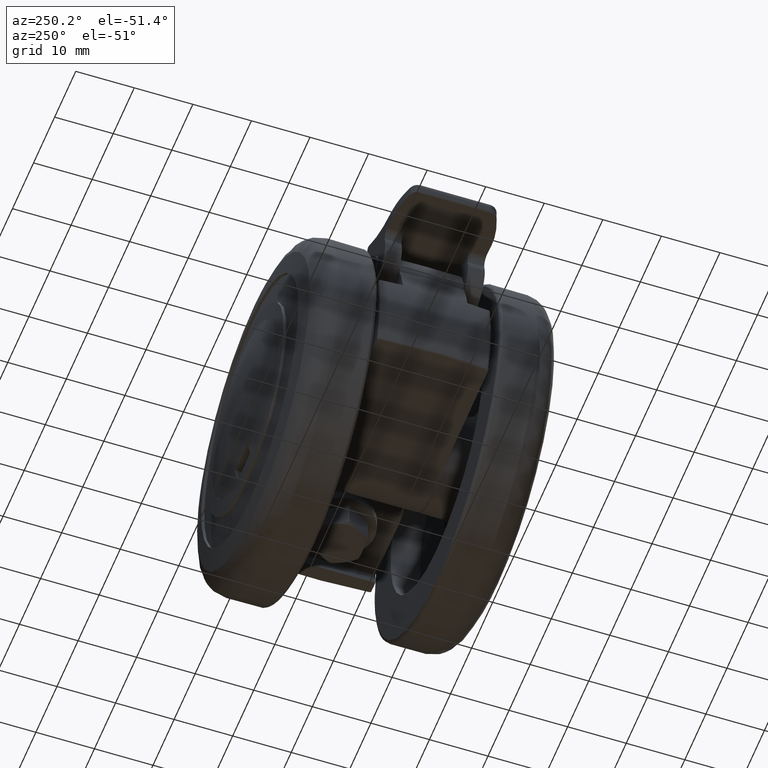
[diagram: clean part render]
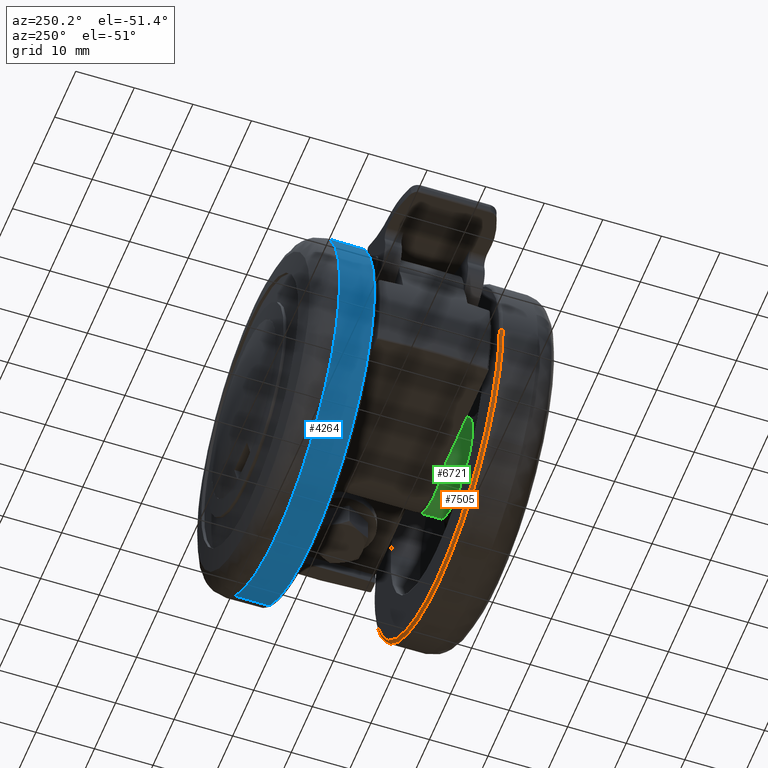
[diagram: same view with three faces highlighted in distinct colors, each labeled with its STEP entity id]
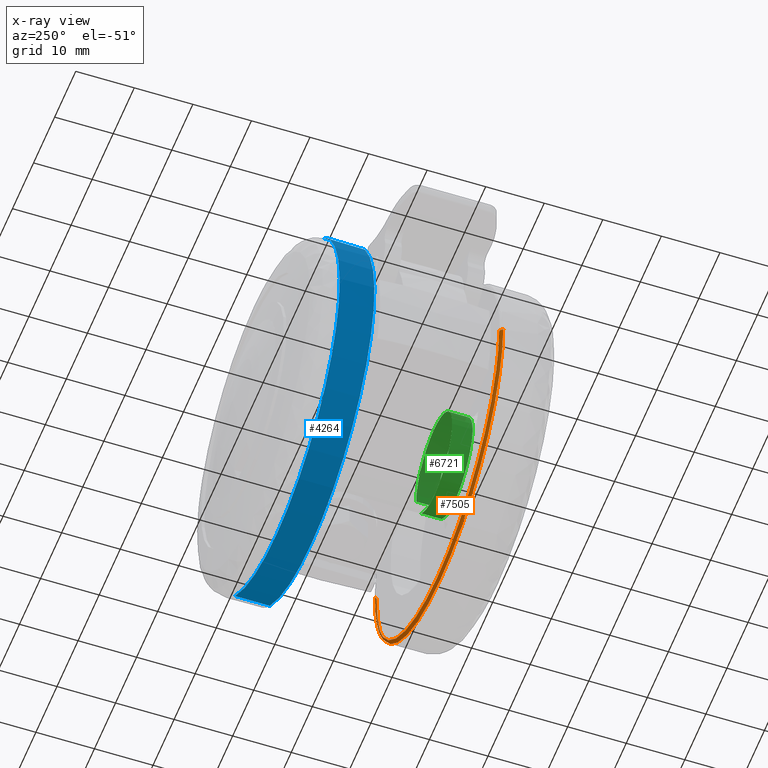
[diagram: x-ray of the same camera — body ghosted, the three highlighted faces saturated]
A machine part, auxiliary view with three faces highlighted in distinct colors.
The next image is the same camera in x-ray (body ghosted, the three faces saturated) — at least one of them is partly hidden behind the body in this view.
Their STEP definitions:

[orange] entity #7505 — the highlighted face is a freeform B-spline surface patch.
#6368=CARTESIAN_POINT('',(-29.990525678497470,-10.999999999923910,-0.753902863360767));
#6369=VERTEX_POINT('',#6368);
#6385=CARTESIAN_POINT('',(-22.686024877766950,-10.999999999973021,-19.630187855568810));
#6386=VERTEX_POINT('',#6385);
#6387=CARTESIAN_POINT('',(-22.686024877766954,-10.999999999973021,-19.630187855568817));
#6388=CARTESIAN_POINT('',(-29.720369695311238,-10.999999999951870,-11.500804545328336));
#6389=CARTESIAN_POINT('',(-29.990525678497473,-10.999999999923910,-0.753902863360767));
#6397=(BOUNDED_CURVE()B_SPLINE_CURVE(2,(#6387,#6388,#6389),.UNSPECIFIED.,.F.,.U.)B_SPLINE_CURVE_WITH_KNOTS((3,3),(0.635882132299198,0.745579891769099),.UNSPECIFIED.)CURVE()GEOMETRIC_REPRESENTATION_ITEM()RATIONAL_B_SPLINE_CURVE((0.854663299402094,0.865851778479166,0.989826157679974))REPRESENTATION_ITEM(''));
#6398=EDGE_CURVE('',#6386,#6369,#6397,.T.);
#6446=CARTESIAN_POINT('',(0.0,-11.0,-30.0));
#6447=VERTEX_POINT('',#6446);
#6448=CARTESIAN_POINT('',(0.0,-11.0,-30.0));
#6449=CARTESIAN_POINT('',(-13.713039900497545,-11.0,-30.0));
#6450=CARTESIAN_POINT('',(-22.686024877766954,-10.999999999973021,-19.630187855568817));
#6458=(BOUNDED_CURVE()B_SPLINE_CURVE(2,(#6448,#6449,#6450),.UNSPECIFIED.,.F.,.U.)B_SPLINE_CURVE_WITH_KNOTS((3,3),(0.500000000000000,0.635882132299198),.UNSPECIFIED.)CURVE()GEOMETRIC_REPRESENTATION_ITEM()RATIONAL_B_SPLINE_CURVE((1.0,0.840804179566610,0.854663299402094))REPRESENTATION_ITEM(''));
#6459=EDGE_CURVE('',#6447,#6386,#6458,.T.);
#6461=CARTESIAN_POINT('',(29.990525678497470,-10.999999999923910,0.753902863360767));
#6462=VERTEX_POINT('',#6461);
#6463=CARTESIAN_POINT('',(29.990525678497473,-10.999999999923912,0.753902863360767));
#6464=CARTESIAN_POINT('',(30.0,-11.000000000000007,0.377010963762058));
#6465=CARTESIAN_POINT('',(30.0,-11.0,0.0));
#6466=CARTESIAN_POINT('',(29.999999999999993,-11.0,-29.999999999999993));
#6467=CARTESIAN_POINT('',(0.0,-11.0,-30.0));
#6475=(BOUNDED_CURVE()B_SPLINE_CURVE(2,(#6463,#6464,#6465,#6466,#6467),.UNSPECIFIED.,.F.,.U.)B_SPLINE_CURVE_WITH_KNOTS((3,2,3),(0.245579891769100,0.250000000000000,0.500000000000000),.UNSPECIFIED.)CURVE()GEOMETRIC_REPRESENTATION_ITEM()RATIONAL_B_SPLINE_CURVE((0.989826157679977,0.994821521090991,1.0,0.707106781186547,1.0))REPRESENTATION_ITEM(''));
#6476=EDGE_CURVE('',#6462,#6447,#6475,.T.);
#7417=CARTESIAN_POINT('',(29.989309214057212,-11.034862128661313,0.753872283775259));
#7418=CARTESIAN_POINT('',(30.743181497832477,-11.034862128661310,-29.235436930281956));
#7419=CARTESIAN_POINT('',(0.753872283775267,-11.034862128661313,-29.989309214057212));
#7420=CARTESIAN_POINT('',(-29.235436930281956,-11.034862128661310,-30.743181497832477));
#7421=CARTESIAN_POINT('',(-29.989309214057212,-11.034862128661313,-0.753872283775269));
#7422=CARTESIAN_POINT('',(30.029383125830293,-10.461331273120734,0.754879663144105));
#7423=CARTESIAN_POINT('',(30.784262788974409,-10.461331273120734,-29.274503462686180));
#7424=CARTESIAN_POINT('',(0.754879663144113,-10.461331273120734,-30.029383125830293));
#7425=CARTESIAN_POINT('',(-29.274503462686180,-10.461331273120734,-30.784262788974409));
#7426=CARTESIAN_POINT('',(-30.029383125830293,-10.461331273120734,-0.754879663144115));
#7427=CARTESIAN_POINT('',(29.456018487206592,-10.501203877606647,0.740466403189700));
#7428=CARTESIAN_POINT('',(30.196484890396299,-10.501203877606649,-28.715552084016874));
#7429=CARTESIAN_POINT('',(0.740466403189708,-10.501203877606647,-29.456018487206592));
#7430=CARTESIAN_POINT('',(-28.715552084016874,-10.501203877606649,-30.196484890396299));
#7431=CARTESIAN_POINT('',(-29.456018487206592,-10.501203877606647,-0.740466403189710));
#7439=(BOUNDED_SURFACE()B_SPLINE_SURFACE(2,2,((#7417,#7422,#7427),(#7418,#7423,#7428),(#7419,#7424,#7429),(#7420,#7425,#7430),(#7421,#7426,#7431)),.UNSPECIFIED.,.F.,.F.,.U.)B_SPLINE_SURFACE_WITH_KNOTS((3,2,3),(3,3),(0.0,49.703611343772742,99.407222687545485),(0.0,0.911186126923229),.UNSPECIFIED.)GEOMETRIC_REPRESENTATION_ITEM()RATIONAL_B_SPLINE_SURFACE(((0.910892971418953,0.599412603206690,0.915967262884417),(0.644098597025506,0.423848716456132,0.647686662930452),(0.910892971418953,0.599412603206690,0.915967262884417),(0.644098597025506,0.423848716456132,0.647686662930452),(0.910892971418953,0.599412603206690,0.915967262884417)))REPRESENTATION_ITEM('')SURFACE());
#7440=ORIENTED_EDGE('',*,*,#6476,.T.);
#7441=ORIENTED_EDGE('',*,*,#6459,.T.);
#7442=ORIENTED_EDGE('',*,*,#6398,.T.);
#7443=CARTESIAN_POINT('',(-29.490683629105199,-10.500000000000000,-0.741337817106431));
#7444=VERTEX_POINT('',#7443);
#7445=CARTESIAN_POINT('',(-29.990525678497473,-10.999999999923912,-0.753902863360768));
#7446=CARTESIAN_POINT('',(-29.990525678346849,-10.500000090543908,-0.753902863296298));
#7447=CARTESIAN_POINT('',(-29.490683629105199,-10.500000000000002,-0.741337817106431));
#7455=(BOUNDED_CURVE()B_SPLINE_CURVE(2,(#7445,#7446,#7447),.UNSPECIFIED.,.F.,.U.)B_SPLINE_CURVE_WITH_KNOTS((3,3),(-1.723441281671403,-0.263587066347038),.UNSPECIFIED.)CURVE()GEOMETRIC_REPRESENTATION_ITEM()RATIONAL_B_SPLINE_CURVE((0.883897567028221,0.626638760321188,0.888510341823274))REPRESENTATION_ITEM(''));
#7456=EDGE_CURVE('',#6369,#7444,#7455,.T.);
#7457=ORIENTED_EDGE('',*,*,#7456,.T.);
#7458=CARTESIAN_POINT('',(0.0,-10.500000000000000,-29.500000000000000));
#7459=VERTEX_POINT('',#7458);
#7460=CARTESIAN_POINT('',(0.0,-10.500000000000000,-29.500000000000000));
#7461=CARTESIAN_POINT('',(-28.767747346567329,-10.500000000000000,-29.500000000000000));
#7462=CARTESIAN_POINT('',(-29.490683629105195,-10.499999999999998,-0.741337817106431));
#7470=(BOUNDED_CURVE()B_SPLINE_CURVE(2,(#7460,#7461,#7462),.UNSPECIFIED.,.F.,.U.)B_SPLINE_CURVE_WITH_KNOTS((3,3),(0.500000000000000,0.745579891765175),.UNSPECIFIED.)CURVE()GEOMETRIC_REPRESENTATION_ITEM()RATIONAL_B_SPLINE_CURVE((1.0,0.712285260100154,0.989826157671106))REPRESENTATION_ITEM(''));
#7471=EDGE_CURVE('',#7459,#7444,#7470,.T.);
#7472=ORIENTED_EDGE('',*,*,#7471,.F.);
#7473=CARTESIAN_POINT('',(29.490683629105199,-10.500000000000000,0.741337817106429));
#7474=VERTEX_POINT('',#7473);
#7475=CARTESIAN_POINT('',(29.490683629105195,-10.500000000000005,0.741337817106429));
#7476=CARTESIAN_POINT('',(29.499999999999996,-10.499999999999998,0.370727448030166));
#7477=CARTESIAN_POINT('',(29.500000000000000,-10.500000000000000,0.0));
#7478=CARTESIAN_POINT('',(29.499999999999996,-10.500000000000002,-29.499999999999996));
#7479=CARTESIAN_POINT('',(0.0,-10.500000000000000,-29.500000000000000));
#7487=(BOUNDED_CURVE()B_SPLINE_CURVE(2,(#7475,#7476,#7477,#7478,#7479),.UNSPECIFIED.,.F.,.U.)B_SPLINE_CURVE_WITH_KNOTS((3,2,3),(0.245579891765176,0.250000000000000,0.500000000000000),.UNSPECIFIED.)CURVE()GEOMETRIC_REPRESENTATION_ITEM()RATIONAL_B_SPLINE_CURVE((0.989826157671108,0.994821521086394,1.0,0.707106781186548,1.0))REPRESENTATION_ITEM(''));
#7488=EDGE_CURVE('',#7474,#7459,#7487,.T.);
#7489=ORIENTED_EDGE('',*,*,#7488,.F.);
#7490=CARTESIAN_POINT('',(29.990525678497470,-10.999999999923912,0.753902863360767));
#7491=CARTESIAN_POINT('',(29.990525678346863,-10.500000090543914,0.753902863296302));
#7492=CARTESIAN_POINT('',(29.490683629105206,-10.500000000000004,0.741337817106429));
#7500=(BOUNDED_CURVE()B_SPLINE_CURVE(2,(#7490,#7491,#7492),.UNSPECIFIED.,.F.,.U.)B_SPLINE_CURVE_WITH_KNOTS((3,3),(-1.723441281671407,-0.263587066347045),.UNSPECIFIED.)CURVE()GEOMETRIC_REPRESENTATION_ITEM()RATIONAL_B_SPLINE_CURVE((0.883897567028222,0.626638760321188,0.888510341823271))REPRESENTATION_ITEM(''));
#7501=EDGE_CURVE('',#6462,#7474,#7500,.T.);
#7502=ORIENTED_EDGE('',*,*,#7501,.F.);
#7503=EDGE_LOOP('',(#7440,#7441,#7442,#7457,#7472,#7489,#7502));
#7504=FACE_OUTER_BOUND('',#7503,.T.);
#7505=ADVANCED_FACE('',(#7504),#7439,.T.);

[blue] entity #4264 — the highlighted face is a freeform B-spline surface patch.
#4043=CARTESIAN_POINT('',(19.630187965152860,16.918165000004919,-22.686024782953091));
#4044=VERTEX_POINT('',#4043);
#4075=CARTESIAN_POINT('',(-22.118321371718419,16.918165000004819,20.267704845329199));
#4076=VERTEX_POINT('',#4075);
#4090=CARTESIAN_POINT('',(-22.118321259217169,10.999999999976550,20.267704968094289));
#4091=VERTEX_POINT('',#4090);
#4092=CARTESIAN_POINT('',(-22.118321371718419,16.918165000004819,20.267704845329199));
#4093=CARTESIAN_POINT('',(-22.118321259217169,10.999999999976550,20.267704968094289));
#4094=QUASI_UNIFORM_CURVE('',1,(#4092,#4093),.UNSPECIFIED.,.F.,.U.);
#4095=EDGE_CURVE('',#4076,#4091,#4094,.T.);
#4129=CARTESIAN_POINT('',(19.630187422599640,10.999999999982380,-22.686025252417171));
#4130=VERTEX_POINT('',#4129);
#4144=CARTESIAN_POINT('',(19.630187965152860,16.918165000004919,-22.686024782953091));
#4145=CARTESIAN_POINT('',(19.630187422599640,10.999999999982380,-22.686025252417171));
#4146=QUASI_UNIFORM_CURVE('',1,(#4144,#4145),.UNSPECIFIED.,.F.,.U.);
#4147=EDGE_CURVE('',#4044,#4130,#4146,.T.);
#4152=CARTESIAN_POINT('',(-22.118320104303731,17.066119125357350,20.267706228469780));
#4153=CARTESIAN_POINT('',(-42.386026332773511,17.066119125357357,-1.850613875833958));
#4154=CARTESIAN_POINT('',(-20.267706228469780,17.066119125357361,-22.118320104303731));
#4155=CARTESIAN_POINT('',(-0.571525739353565,17.066119125357357,-40.166544295554615));
#4156=CARTESIAN_POINT('',(19.630189710081165,17.066119125357368,-22.686023273068884));
#4157=CARTESIAN_POINT('',(-22.118320104303731,10.848347021793840,20.267706228469770));
#4158=CARTESIAN_POINT('',(-42.386026332773511,10.848347021793844,-1.850613875833961));
#4159=CARTESIAN_POINT('',(-20.267706228469780,10.848347021793851,-22.118320104303741));
#4160=CARTESIAN_POINT('',(-0.571525739353565,10.848347021793856,-40.166544295554615));
#4161=CARTESIAN_POINT('',(19.630189710081165,10.848347021793849,-22.686023273068884));
#4169=(BOUNDED_SURFACE()B_SPLINE_SURFACE(2,1,((#4152,#4157),(#4153,#4158),(#4154,#4159),(#4155,#4160),(#4156,#4161)),.UNSPECIFIED.,.F.,.F.,.U.)B_SPLINE_SURFACE_WITH_KNOTS((3,2,3),(2,2),(0.0,49.705627484771391,95.434804770761062),(0.0,6.217772103563516),.UNSPECIFIED.)GEOMETRIC_REPRESENTATION_ITEM()RATIONAL_B_SPLINE_SURFACE(((1.0,1.0),(0.707106781186548,0.707106781186548),(1.0,1.0),(0.730538238691624,0.730538238691624),(0.956886118190660,0.956886118190660)))REPRESENTATION_ITEM('')SURFACE());
#4170=CARTESIAN_POINT('',(0.0,16.918165000004851,-29.999999999999989));
#4171=VERTEX_POINT('',#4170);
#4172=CARTESIAN_POINT('',(19.630187965152864,16.918165000004919,-22.686024782953098));
#4173=CARTESIAN_POINT('',(11.177644192756237,16.918165000004844,-29.999999999999993));
#4174=CARTESIAN_POINT('',(0.0,16.918165000004851,-29.999999999999989));
#4182=(BOUNDED_CURVE()B_SPLINE_CURVE(2,(#4172,#4173,#4174),.UNSPECIFIED.,.F.,.U.)B_SPLINE_CURVE_WITH_KNOTS((3,3),(0.385882131569503,0.500000000000000),.UNSPECIFIED.)CURVE()GEOMETRIC_REPRESENTATION_ITEM()RATIONAL_B_SPLINE_CURVE((0.854663299253246,0.866302600765047,1.0))REPRESENTATION_ITEM(''));
#4183=EDGE_CURVE('',#4044,#4171,#4182,.T.);
#4184=ORIENTED_EDGE('',*,*,#4183,.F.);
#4185=ORIENTED_EDGE('',*,*,#4147,.T.);
#4186=CARTESIAN_POINT('',(0.0,11.0,-30.0));
#4187=VERTEX_POINT('',#4186);
#4188=CARTESIAN_POINT('',(19.630187422599640,10.999999999982377,-22.686025252417167));
#4189=CARTESIAN_POINT('',(11.177643784216981,11.0,-30.0));
#4190=CARTESIAN_POINT('',(0.0,11.0,-30.0));
#4198=(BOUNDED_CURVE()B_SPLINE_CURVE(2,(#4188,#4189,#4190),.UNSPECIFIED.,.F.,.U.)B_SPLINE_CURVE_WITH_KNOTS((3,3),(0.385882135182826,0.500000000000000),.UNSPECIFIED.)CURVE()GEOMETRIC_REPRESENTATION_ITEM()RATIONAL_B_SPLINE_CURVE((0.854663299990318,0.866302604998318,1.0))REPRESENTATION_ITEM(''));
#4199=EDGE_CURVE('',#4130,#4187,#4198,.T.);
#4200=ORIENTED_EDGE('',*,*,#4199,.T.);
#4201=CARTESIAN_POINT('',(-29.990525678497679,10.999999999929541,0.753902863352735));
#4202=VERTEX_POINT('',#4201);
#4203=CARTESIAN_POINT('',(0.0,11.0,-30.0));
#4204=CARTESIAN_POINT('',(-29.999999999999993,11.0,-29.999999999999993));
#4205=CARTESIAN_POINT('',(-30.0,11.0,4.041201E-015));
#4206=CARTESIAN_POINT('',(-30.0,11.000000000000005,0.377010963754011));
#4207=CARTESIAN_POINT('',(-29.990525678497679,10.999999999929535,0.753902863352735));
#4215=(BOUNDED_CURVE()B_SPLINE_CURVE(2,(#4203,#4204,#4205,#4206,#4207),.UNSPECIFIED.,.F.,.U.)B_SPLINE_CURVE_WITH_KNOTS((3,2,3),(0.500000000000000,0.750000000000000,0.754420108230806),.UNSPECIFIED.)CURVE()GEOMETRIC_REPRESENTATION_ITEM()RATIONAL_B_SPLINE_CURVE((1.0,0.707106781186547,1.0,0.994821521091101,0.989826157680189))REPRESENTATION_ITEM(''));
#4216=EDGE_CURVE('',#4187,#4202,#4215,.T.);
#4217=ORIENTED_EDGE('',*,*,#4216,.T.);
#4218=CARTESIAN_POINT('',(-29.990525678497676,10.999999999929537,0.753902863352735));
#4219=CARTESIAN_POINT('',(-29.708202960816497,10.999999999956596,11.984801597435592));
#4220=CARTESIAN_POINT('',(-22.118321259217169,10.999999999976550,20.267704968094289));
#4228=(BOUNDED_CURVE()B_SPLINE_CURVE(2,(#4218,#4219,#4220),.UNSPECIFIED.,.F.,.U.)B_SPLINE_CURVE_WITH_KNOTS((3,3),(0.754420108230806,0.868415200481951),.UNSPECIFIED.)CURVE()GEOMETRIC_REPRESENTATION_ITEM()RATIONAL_B_SPLINE_CURVE((0.989826157680189,0.860995169134216,0.853959781899742))REPRESENTATION_ITEM(''));
#4229=EDGE_CURVE('',#4202,#4091,#4228,.T.);
#4230=ORIENTED_EDGE('',*,*,#4229,.T.);
#4231=ORIENTED_EDGE('',*,*,#4095,.F.);
#4232=CARTESIAN_POINT('',(-29.600578326231581,16.918165000345059,-4.879114955873533));
#4233=VERTEX_POINT('',#4232);
#4234=CARTESIAN_POINT('',(-29.600578326231574,16.918165000345066,-4.879114955873533));
#4235=CARTESIAN_POINT('',(-29.999999999999996,16.918165000004851,-2.455906516138719));
#4236=CARTESIAN_POINT('',(-30.0,16.918165000004851,6.215428E-015));
#4237=CARTESIAN_POINT('',(-30.000000000000007,16.918165000004848,11.666360875732664));
#4238=CARTESIAN_POINT('',(-22.118321371718459,16.918165000004848,20.267704845329252));
#4246=(BOUNDED_CURVE()B_SPLINE_CURVE(2,(#4234,#4235,#4236,#4237,#4238),.UNSPECIFIED.,.F.,.U.)B_SPLINE_CURVE_WITH_KNOTS((3,2,3),(0.722006108799185,0.750000000000000,0.868415199643972),.UNSPECIFIED.)CURVE()GEOMETRIC_REPRESENTATION_ITEM()RATIONAL_B_SPLINE_CURVE((0.941751131923255,0.967203116396318,1.0,0.861267964079358,0.853959782003176))REPRESENTATION_ITEM(''));
#4247=EDGE_CURVE('',#4233,#4076,#4246,.T.);
#4248=ORIENTED_EDGE('',*,*,#4247,.F.);
#4249=CARTESIAN_POINT('',(0.0,16.918165000004851,-29.999999999999989));
#4250=CARTESIAN_POINT('',(-25.459859027661022,16.918165000004848,-29.999999999999993));
#4251=CARTESIAN_POINT('',(-29.600578326231581,16.918165000345066,-4.879114955873533));
#4259=(BOUNDED_CURVE()B_SPLINE_CURVE(2,(#4249,#4250,#4251),.UNSPECIFIED.,.F.,.U.)B_SPLINE_CURVE_WITH_KNOTS((3,3),(0.500000000000000,0.722006108799184),.UNSPECIFIED.)CURVE()GEOMETRIC_REPRESENTATION_ITEM()RATIONAL_B_SPLINE_CURVE((1.0,0.739903664790230,0.941751131923254))REPRESENTATION_ITEM(''));
#4260=EDGE_CURVE('',#4171,#4233,#4259,.T.);
#4261=ORIENTED_EDGE('',*,*,#4260,.F.);
#4262=EDGE_LOOP('',(#4184,#4185,#4200,#4217,#4230,#4231,#4248,#4261));
#4263=FACE_OUTER_BOUND('',#4262,.T.);
#4264=ADVANCED_FACE('',(#4263),#4169,.T.);

[green] entity #6721 — the highlighted face is a freeform B-spline surface patch.
#6525=CARTESIAN_POINT('',(6.155301365099552,-13.587500000692314,-5.861933563663406));
#6526=CARTESIAN_POINT('',(3.612635184048401,-13.587500000692309,-8.531850655906197));
#6527=CARTESIAN_POINT('',(-0.074175551736178,-13.587500000692311,-8.499676346045455));
#6528=CARTESIAN_POINT('',(-8.573851897781633,-13.587500000692309,-8.425500794309276));
#6529=CARTESIAN_POINT('',(-8.499676346045455,-13.587500000692311,0.074175551736178));
#6530=CARTESIAN_POINT('',(-8.425500794309276,-13.587500000692309,8.573851897781633));
#6531=CARTESIAN_POINT('',(0.074175551736178,-13.587500000692311,8.499676346045455));
#6532=CARTESIAN_POINT('',(8.573851897781633,-13.587500000692309,8.425500794309276));
#6533=CARTESIAN_POINT('',(8.499676346045455,-13.587500000692311,-0.074175551736178));
#6534=CARTESIAN_POINT('',(6.155301365099552,-9.910312497142067,-5.861933563663406));
#6535=CARTESIAN_POINT('',(3.612635184048401,-9.910312497142069,-8.531850655906197));
#6536=CARTESIAN_POINT('',(-0.074175551736178,-9.910312497142069,-8.499676346045455));
#6537=CARTESIAN_POINT('',(-8.573851897781633,-9.910312497142069,-8.425500794309276));
#6538=CARTESIAN_POINT('',(-8.499676346045455,-9.910312497142069,0.074175551736178));
#6539=CARTESIAN_POINT('',(-8.425500794309276,-9.910312497142069,8.573851897781633));
#6540=CARTESIAN_POINT('',(0.074175551736178,-9.910312497142069,8.499676346045455));
#6541=CARTESIAN_POINT('',(8.573851897781633,-9.910312497142069,8.425500794309276));
#6542=CARTESIAN_POINT('',(8.499676346045455,-9.910312497142069,-0.074175551736178));
#6550=(BOUNDED_SURFACE()B_SPLINE_SURFACE(2,1,((#6525,#6534),(#6526,#6535),(#6527,#6536),(#6528,#6537),(#6529,#6538),(#6530,#6539),(#6531,#6540),(#6532,#6541),(#6533,#6542)),.UNSPECIFIED.,.F.,.F.,.U.)B_SPLINE_SURFACE_WITH_KNOTS((3,2,2,2,3),(2,2),(0.0,7.323295782756319,21.406556903441551,35.489818024126777,49.573079144812013),(0.0,3.677187503550244),.UNSPECIFIED.)GEOMETRIC_REPRESENTATION_ITEM()RATIONAL_B_SPLINE_SURFACE(((0.853787705168325,0.853787705168325),(0.847695526217005,0.847695526217005),(1.0,1.0),(0.707106781186548,0.707106781186548),(1.0,1.0),(0.707106781186548,0.707106781186548),(1.0,1.0),(0.707106781186548,0.707106781186548),(1.0,1.0)))REPRESENTATION_ITEM('')SURFACE());
#6551=CARTESIAN_POINT('',(6.155301829002491,-13.500000000000020,-5.861933076543788));
#6552=VERTEX_POINT('',#6551);
#6553=CARTESIAN_POINT('',(0.0,-13.500000000000000,-8.500000000000000));
#6554=VERTEX_POINT('',#6553);
#6555=CARTESIAN_POINT('',(6.155301829002492,-13.500000000000023,-5.861933076543788));
#6556=CARTESIAN_POINT('',(3.642968602165949,-13.500000000000004,-8.500000000000000));
#6557=CARTESIAN_POINT('',(0.0,-13.500000000000000,-8.500000000000000));
#6565=(BOUNDED_CURVE()B_SPLINE_CURVE(2,(#6555,#6556,#6557),.UNSPECIFIED.,.F.,.U.)B_SPLINE_CURVE_WITH_KNOTS((3,3),(0.871316999963881,1.0),.UNSPECIFIED.)CURVE()GEOMETRIC_REPRESENTATION_ITEM()RATIONAL_B_SPLINE_CURVE((0.853680524894800,0.849238487651398,1.0))REPRESENTATION_ITEM(''));
#6566=EDGE_CURVE('',#6552,#6554,#6565,.T.);
#6567=ORIENTED_EDGE('',*,*,#6566,.T.);
#6568=CARTESIAN_POINT('',(-3.003066716672469,-13.500000000569329,-7.951829367838196));
#6569=VERTEX_POINT('',#6568);
#6570=CARTESIAN_POINT('',(0.0,-13.500000000000000,-8.500000000000000));
#6571=CARTESIAN_POINT('',(-1.551564055373498,-13.499999999999998,-8.500000000000000));
#6572=CARTESIAN_POINT('',(-3.003066716672470,-13.500000000569331,-7.951829367838196));
#6580=(BOUNDED_CURVE()B_SPLINE_CURVE(2,(#6570,#6571,#6572),.UNSPECIFIED.,.F.,.U.)B_SPLINE_CURVE_WITH_KNOTS((3,3),(0.0,0.060000000002447),.UNSPECIFIED.)CURVE()GEOMETRIC_REPRESENTATION_ITEM()RATIONAL_B_SPLINE_CURVE((1.0,0.929705627481905,0.893152553773871))REPRESENTATION_ITEM(''));
#6581=EDGE_CURVE('',#6554,#6569,#6580,.T.);
#6582=ORIENTED_EDGE('',*,*,#6581,.T.);
#6583=CARTESIAN_POINT('',(-8.500000000000000,-13.500000000607830,4.437074E-016));
#6584=VERTEX_POINT('',#6583);
#6585=CARTESIAN_POINT('',(-3.003066716672470,-13.500000000569324,-7.951829367838196));
#6586=CARTESIAN_POINT('',(-8.500000000000007,-13.500000000000000,-5.875872173122279));
#6587=CARTESIAN_POINT('',(-8.500000000000004,-13.500000000607839,4.437074E-016));
#6595=(BOUNDED_CURVE()B_SPLINE_CURVE(2,(#6585,#6586,#6587),.UNSPECIFIED.,.F.,.U.)B_SPLINE_CURVE_WITH_KNOTS((3,3),(0.060000000002447,0.250000000000000),.UNSPECIFIED.)CURVE()GEOMETRIC_REPRESENTATION_ITEM()RATIONAL_B_SPLINE_CURVE((0.893152553773871,0.777401153704643,1.0))REPRESENTATION_ITEM(''));
#6596=EDGE_CURVE('',#6569,#6584,#6595,.T.);
#6597=ORIENTED_EDGE('',*,*,#6596,.T.);
#6598=CARTESIAN_POINT('',(0.0,-13.500000000000000,8.500000000000000));
#6599=VERTEX_POINT('',#6598);
#6600=CARTESIAN_POINT('',(-8.500000000000000,-13.500000000607834,4.437074E-016));
#6601=CARTESIAN_POINT('',(-8.499999999999996,-13.500000000000000,8.499999999999998));
#6602=CARTESIAN_POINT('',(0.0,-13.500000000000000,8.500000000000000));
#6610=(BOUNDED_CURVE()B_SPLINE_CURVE(2,(#6600,#6601,#6602),.UNSPECIFIED.,.F.,.U.)B_SPLINE_CURVE_WITH_KNOTS((3,3),(0.250000000000000,0.500000000000000),.UNSPECIFIED.)CURVE()GEOMETRIC_REPRESENTATION_ITEM()RATIONAL_B_SPLINE_CURVE((1.000000000000000,0.707106781186548,1.0))REPRESENTATION_ITEM(''));
#6611=EDGE_CURVE('',#6584,#6599,#6610,.T.);
#6612=ORIENTED_EDGE('',*,*,#6611,.T.);
#6613=CARTESIAN_POINT('',(8.499676346044717,-13.500000000000000,-0.074175551820762));
#6614=VERTEX_POINT('',#6613);
#6615=CARTESIAN_POINT('',(0.0,-13.500000000000000,8.500000000000000));
#6616=CARTESIAN_POINT('',(8.500000000000002,-13.500000000000000,8.500000000000002));
#6617=CARTESIAN_POINT('',(8.500000000000000,-13.500000000000000,0.0));
#6618=CARTESIAN_POINT('',(8.500000000000000,-13.500000000000002,-0.037088482060550));
#6619=CARTESIAN_POINT('',(8.499676346044717,-13.499999999999998,-0.074175551820762));
#6627=(BOUNDED_CURVE()B_SPLINE_CURVE(2,(#6615,#6616,#6617,#6618,#6619),.UNSPECIFIED.,.F.,.U.)B_SPLINE_CURVE_WITH_KNOTS((3,2,3),(0.500000000000000,0.750000000000000,0.751539894338493),.UNSPECIFIED.)CURVE()GEOMETRIC_REPRESENTATION_ITEM()RATIONAL_B_SPLINE_CURVE((1.0,0.707106781186548,1.0,0.998195901562265,0.996414028092293))REPRESENTATION_ITEM(''));
#6628=EDGE_CURVE('',#6599,#6614,#6627,.T.);
#6629=ORIENTED_EDGE('',*,*,#6628,.T.);
#6630=CARTESIAN_POINT('',(8.499676346044819,-10.0,-0.074175551809084));
#6631=VERTEX_POINT('',#6630);
#6632=CARTESIAN_POINT('',(8.499676346044717,-13.500000000000000,-0.074175551820762));
#6633=CARTESIAN_POINT('',(8.499676346044819,-10.0,-0.074175551809084));
#6634=QUASI_UNIFORM_CURVE('',1,(#6632,#6633),.UNSPECIFIED.,.F.,.U.);
#6635=EDGE_CURVE('',#6614,#6631,#6634,.T.);
#6636=ORIENTED_EDGE('',*,*,#6635,.T.);
#6637=CARTESIAN_POINT('',(0.0,-10.0,8.500000000000000));
#6638=VERTEX_POINT('',#6637);
#6639=CARTESIAN_POINT('',(8.499676346044819,-10.0,-0.074175551809084));
#6640=CARTESIAN_POINT('',(8.500000000000002,-10.000000000000002,-0.037088482048874));
#6641=CARTESIAN_POINT('',(8.500000000000000,-10.0,0.0));
#6642=CARTESIAN_POINT('',(8.500000000000002,-10.000000000000002,8.500000000000002));
#6643=CARTESIAN_POINT('',(0.0,-10.0,8.500000000000000));
#6651=(BOUNDED_CURVE()B_SPLINE_CURVE(2,(#6639,#6640,#6641,#6642,#6643),.UNSPECIFIED.,.F.,.U.)B_SPLINE_CURVE_WITH_KNOTS((3,2,3),(0.248460105661991,0.250000000000000,0.500000000000000),.UNSPECIFIED.)CURVE()GEOMETRIC_REPRESENTATION_ITEM()RATIONAL_B_SPLINE_CURVE((0.996414028093413,0.998195901562832,1.0,0.707106781186548,1.0))REPRESENTATION_ITEM(''));
#6652=EDGE_CURVE('',#6631,#6638,#6651,.T.);
#6653=ORIENTED_EDGE('',*,*,#6652,.T.);
#6654=CARTESIAN_POINT('',(-8.500000000000000,-9.999999997410585,4.573965E-014));
#6655=VERTEX_POINT('',#6654);
#6656=CARTESIAN_POINT('',(0.0,-10.0,8.500000000000000));
#6657=CARTESIAN_POINT('',(-8.499999999999957,-10.0,8.500000000000000));
#6658=CARTESIAN_POINT('',(-8.500000000000000,-9.999999997410585,4.573965E-014));
#6666=(BOUNDED_CURVE()B_SPLINE_CURVE(2,(#6656,#6657,#6658),.UNSPECIFIED.,.F.,.U.)B_SPLINE_CURVE_WITH_KNOTS((3,3),(0.500000000000000,0.749999999999999),.UNSPECIFIED.)CURVE()GEOMETRIC_REPRESENTATION_ITEM()RATIONAL_B_SPLINE_CURVE((1.0,0.707106781186549,0.999999999999998))REPRESENTATION_ITEM(''));
#6667=EDGE_CURVE('',#6638,#6655,#6666,.T.);
#6668=ORIENTED_EDGE('',*,*,#6667,.T.);
#6669=CARTESIAN_POINT('',(-3.003066716634145,-9.999999997228660,-7.951829367852669));
#6670=VERTEX_POINT('',#6669);
#6671=CARTESIAN_POINT('',(-8.500000000000004,-9.999999997410590,4.573965E-014));
#6672=CARTESIAN_POINT('',(-8.500000000000062,-10.0,-5.875872173182831));
#6673=CARTESIAN_POINT('',(-3.003066716634146,-9.999999997228658,-7.951829367852669));
#6681=(BOUNDED_CURVE()B_SPLINE_CURVE(2,(#6671,#6672,#6673),.UNSPECIFIED.,.F.,.U.)B_SPLINE_CURVE_WITH_KNOTS((3,3),(0.749999999999998,0.939999999999076),.UNSPECIFIED.)CURVE()GEOMETRIC_REPRESENTATION_ITEM()RATIONAL_B_SPLINE_CURVE((1.000000000000004,0.777401153702858,0.893152553775726))REPRESENTATION_ITEM(''));
#6682=EDGE_CURVE('',#6655,#6670,#6681,.T.);
#6683=ORIENTED_EDGE('',*,*,#6682,.T.);
#6684=CARTESIAN_POINT('',(0.0,-10.0,-8.500000000000000));
#6685=VERTEX_POINT('',#6684);
#6686=CARTESIAN_POINT('',(-3.003066716634145,-9.999999997228658,-7.951829367852669));
#6687=CARTESIAN_POINT('',(-1.551564055331168,-10.0,-8.500000000000000));
#6688=CARTESIAN_POINT('',(0.0,-10.0,-8.500000000000000));
#6696=(BOUNDED_CURVE()B_SPLINE_CURVE(2,(#6686,#6687,#6688),.UNSPECIFIED.,.F.,.U.)B_SPLINE_CURVE_WITH_KNOTS((3,3),(0.939999999999075,1.0),.UNSPECIFIED.)CURVE()GEOMETRIC_REPRESENTATION_ITEM()RATIONAL_B_SPLINE_CURVE((0.893152553775725,0.929705627483688,1.0))REPRESENTATION_ITEM(''));
#6697=EDGE_CURVE('',#6670,#6685,#6696,.T.);
#6698=ORIENTED_EDGE('',*,*,#6697,.T.);
#6699=CARTESIAN_POINT('',(6.155301591505830,-10.0,-5.861933325926326));
#6700=VERTEX_POINT('',#6699);
#6701=CARTESIAN_POINT('',(0.0,-10.0,-8.500000000000000));
#6702=CARTESIAN_POINT('',(3.642968194530800,-10.0,-8.500000000000002));
#6703=CARTESIAN_POINT('',(6.155301591505830,-10.0,-5.861933325926327));
#6711=(BOUNDED_CURVE()B_SPLINE_CURVE(2,(#6701,#6702,#6703),.UNSPECIFIED.,.F.,.U.)B_SPLINE_CURVE_WITH_KNOTS((3,3),(0.0,0.128682987807792),.UNSPECIFIED.)CURVE()GEOMETRIC_REPRESENTATION_ITEM()RATIONAL_B_SPLINE_CURVE((1.0,0.849238501977774,0.853680524050577))REPRESENTATION_ITEM(''));
#6712=EDGE_CURVE('',#6685,#6700,#6711,.T.);
#6713=ORIENTED_EDGE('',*,*,#6712,.T.);
#6714=CARTESIAN_POINT('',(6.155301829002491,-13.500000000000020,-5.861933076543788));
#6715=CARTESIAN_POINT('',(6.155301591505830,-10.0,-5.861933325926326));
#6716=QUASI_UNIFORM_CURVE('',1,(#6714,#6715),.UNSPECIFIED.,.F.,.U.);
#6717=EDGE_CURVE('',#6552,#6700,#6716,.T.);
#6718=ORIENTED_EDGE('',*,*,#6717,.F.);
#6719=EDGE_LOOP('',(#6567,#6582,#6597,#6612,#6629,#6636,#6653,#6668,#6683,#6698,#6713,#6718));
#6720=FACE_OUTER_BOUND('',#6719,.T.);
#6721=ADVANCED_FACE('',(#6720),#6550,.T.);